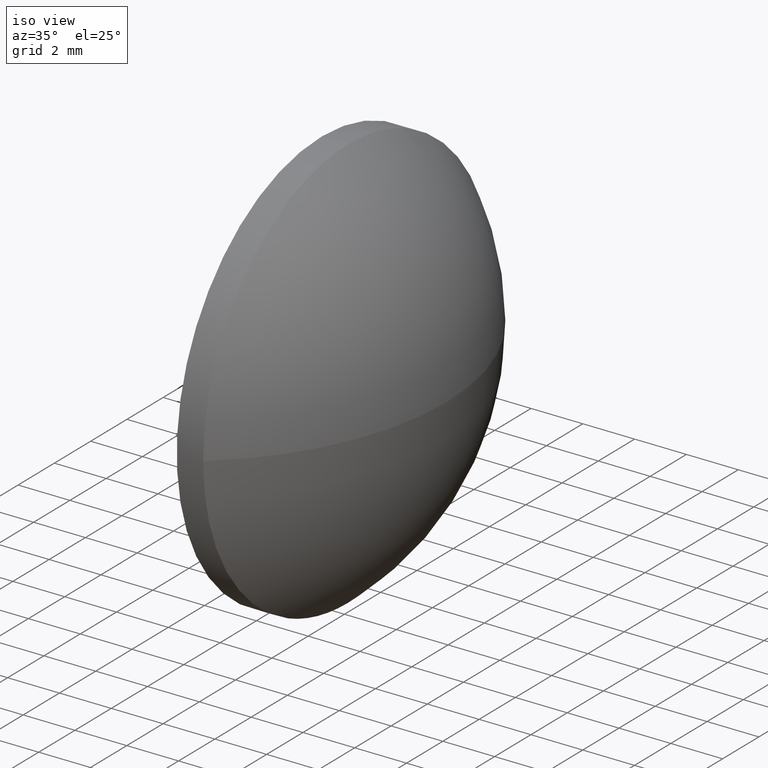
[diagram: clean part render]
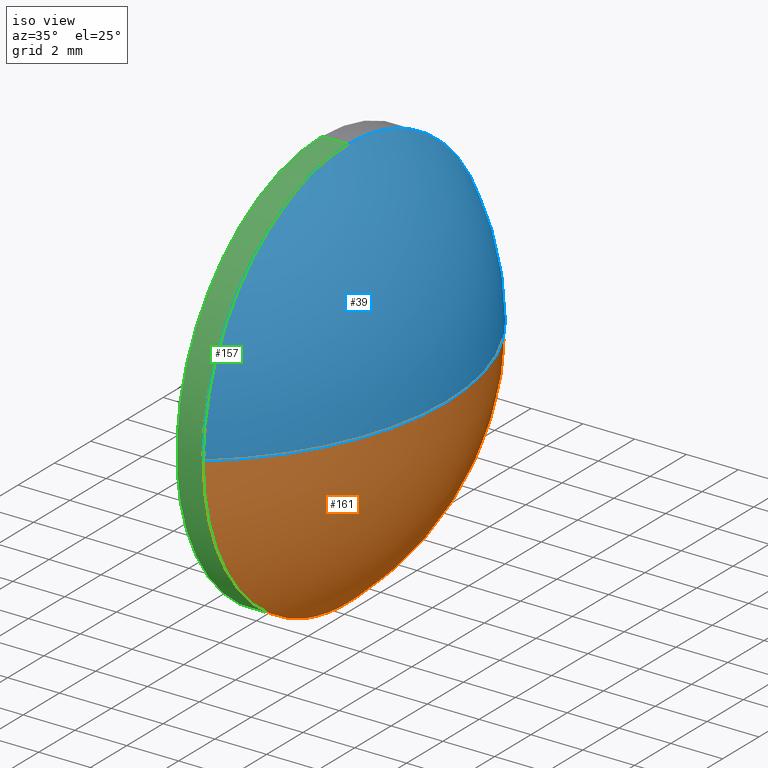
[diagram: same view with three faces highlighted in distinct colors, each labeled with its STEP entity id]
A machine part, iso view with three faces highlighted in distinct colors.
Their STEP definitions:

[orange] entity #161 — the highlighted spherical surface has radius 10.3556 mm.
#4 = CARTESIAN_POINT ( 'NONE',  ( 378.0321735062485100, 0.1662147536938291500, 9.797174393178831600E-016 ) ) ;
#8 = CARTESIAN_POINT ( 'NONE',  ( 378.0321735062485100, -7.833785246306179700, 0.0000000000000000000 ) ) ;
#10 = EDGE_CURVE ( 'NONE', #98, #104, #129, .T. ) ;
#14 = FACE_OUTER_BOUND ( 'NONE', #62, .T. ) ;
#18 = CARTESIAN_POINT ( 'NONE',  ( 378.0321735062485100, -15.83378524630618300, 0.0000000000000000000 ) ) ;
#21 = EDGE_CURVE ( 'NONE', #106, #104, #100, .T. ) ;
#24 = CARTESIAN_POINT ( 'NONE',  ( 371.4565650406399900, -7.833785246306176100, 0.0000000000000000000 ) ) ;
#31 = EDGE_CURVE ( 'NONE', #138, #106, #60, .T. ) ;
#33 = AXIS2_PLACEMENT_3D ( 'NONE', #51, #160, #80 ) ;
#35 = DIRECTION ( 'NONE',  ( 0.0000000000000000000, -1.000000000000000000, -1.224646799147353500E-016 ) ) ;
#42 = AXIS2_PLACEMENT_3D ( 'NONE', #8, #110, #121 ) ;
#45 = DIRECTION ( 'NONE',  ( 0.0000000000000000000, -1.224646799147353200E-016, 1.000000000000000000 ) ) ;
#51 = CARTESIAN_POINT ( 'NONE',  ( 371.4565650406399900, -7.833785246306176100, 0.0000000000000000000 ) ) ;
#52 = DIRECTION ( 'NONE',  ( 0.0000000000000000000, 0.0000000000000000000, 1.000000000000000000 ) ) ;
#54 = DIRECTION ( 'NONE',  ( -1.000000000000000000, -0.0000000000000000000, -0.0000000000000000000 ) ) ;
#60 = CIRCLE ( 'NONE', #139, 8.000000000000001800 ) ;
#62 = EDGE_LOOP ( 'NONE', ( #145, #140, #137, #182 ) ) ;
#70 = AXIS2_PLACEMENT_3D ( 'NONE', #89, #45, #35 ) ;
#75 = CARTESIAN_POINT ( 'NONE',  ( 378.0321735062485100, -7.833785246306177900, -8.000000000000001800 ) ) ;
#80 = DIRECTION ( 'NONE',  ( -1.000000000000000000, 0.0000000000000000000, 0.0000000000000000000 ) ) ;
#87 = CIRCLE ( 'NONE', #70, 10.35560846560850100 ) ;
#89 = CARTESIAN_POINT ( 'NONE',  ( 371.4565650406399900, -7.833785246306176100, 0.0000000000000000000 ) ) ;
#96 = SPHERICAL_SURFACE ( 'NONE', #134, 10.35560846560850100 ) ;
#98 = VERTEX_POINT ( 'NONE', #128 ) ;
#100 = CIRCLE ( 'NONE', #42, 8.000000000000001800 ) ;
#104 = VERTEX_POINT ( 'NONE', #18 ) ;
#106 = VERTEX_POINT ( 'NONE', #75 ) ;
#110 = DIRECTION ( 'NONE',  ( -1.000000000000000000, -0.0000000000000000000, -0.0000000000000000000 ) ) ;
#111 = DIRECTION ( 'NONE',  ( 0.0000000000000000000, -1.000000000000000000, 0.0000000000000000000 ) ) ;
#115 = EDGE_CURVE ( 'NONE', #98, #138, #87, .T. ) ;
#121 = DIRECTION ( 'NONE',  ( 0.0000000000000000000, 0.0000000000000000000, 1.000000000000000000 ) ) ;
#128 = CARTESIAN_POINT ( 'NONE',  ( 381.8121735062485400, -7.833785246306176100, 0.0000000000000000000 ) ) ;
#129 = CIRCLE ( 'NONE', #33, 10.35560846560851200 ) ;
#134 = AXIS2_PLACEMENT_3D ( 'NONE', #24, #52, #111 ) ;
#137 = ORIENTED_EDGE ( 'NONE', *, *, #21, .F. ) ;
#138 = VERTEX_POINT ( 'NONE', #4 ) ;
#139 = AXIS2_PLACEMENT_3D ( 'NONE', #148, #54, #149 ) ;
#140 = ORIENTED_EDGE ( 'NONE', *, *, #10, .T. ) ;
#145 = ORIENTED_EDGE ( 'NONE', *, *, #115, .F. ) ;
#148 = CARTESIAN_POINT ( 'NONE',  ( 378.0321735062485100, -7.833785246306179700, 0.0000000000000000000 ) ) ;
#149 = DIRECTION ( 'NONE',  ( 0.0000000000000000000, 0.0000000000000000000, 1.000000000000000000 ) ) ;
#160 = DIRECTION ( 'NONE',  ( 0.0000000000000000000, 0.0000000000000000000, -1.000000000000000000 ) ) ;
#161 = ADVANCED_FACE ( 'NONE', ( #14 ), #96, .T. ) ;
#182 = ORIENTED_EDGE ( 'NONE', *, *, #31, .F. ) ;

[blue] entity #39 — the highlighted spherical surface has radius 10.3556 mm.
#4 = CARTESIAN_POINT ( 'NONE',  ( 378.0321735062485100, 0.1662147536938291500, 9.797174393178831600E-016 ) ) ;
#9 = CARTESIAN_POINT ( 'NONE',  ( 378.0321735062485100, -7.833785246306179700, 0.0000000000000000000 ) ) ;
#10 = EDGE_CURVE ( 'NONE', #98, #104, #129, .T. ) ;
#17 = CIRCLE ( 'NONE', #29, 8.000000000000001800 ) ;
#18 = CARTESIAN_POINT ( 'NONE',  ( 378.0321735062485100, -15.83378524630618300, 0.0000000000000000000 ) ) ;
#25 = DIRECTION ( 'NONE',  ( 0.0000000000000000000, 0.0000000000000000000, 1.000000000000000000 ) ) ;
#27 = DIRECTION ( 'NONE',  ( 0.0000000000000000000, -1.000000000000000000, 0.0000000000000000000 ) ) ;
#29 = AXIS2_PLACEMENT_3D ( 'NONE', #9, #68, #122 ) ;
#33 = AXIS2_PLACEMENT_3D ( 'NONE', #51, #160, #80 ) ;
#35 = DIRECTION ( 'NONE',  ( 0.0000000000000000000, -1.000000000000000000, -1.224646799147353500E-016 ) ) ;
#39 = ADVANCED_FACE ( 'NONE', ( #58 ), #85, .T. ) ;
#41 = EDGE_CURVE ( 'NONE', #183, #138, #17, .T. ) ;
#45 = DIRECTION ( 'NONE',  ( 0.0000000000000000000, -1.224646799147353200E-016, 1.000000000000000000 ) ) ;
#51 = CARTESIAN_POINT ( 'NONE',  ( 371.4565650406399900, -7.833785246306176100, 0.0000000000000000000 ) ) ;
#58 = FACE_OUTER_BOUND ( 'NONE', #178, .T. ) ;
#64 = CARTESIAN_POINT ( 'NONE',  ( 378.0321735062485100, -7.833785246306179700, 8.000000000000001800 ) ) ;
#66 = CARTESIAN_POINT ( 'NONE',  ( 371.4565650406399900, -7.833785246306176100, 0.0000000000000000000 ) ) ;
#68 = DIRECTION ( 'NONE',  ( -1.000000000000000000, -0.0000000000000000000, -0.0000000000000000000 ) ) ;
#70 = AXIS2_PLACEMENT_3D ( 'NONE', #89, #45, #35 ) ;
#80 = DIRECTION ( 'NONE',  ( -1.000000000000000000, 0.0000000000000000000, 0.0000000000000000000 ) ) ;
#85 = SPHERICAL_SURFACE ( 'NONE', #184, 10.35560846560850100 ) ;
#87 = CIRCLE ( 'NONE', #70, 10.35560846560850100 ) ;
#89 = CARTESIAN_POINT ( 'NONE',  ( 371.4565650406399900, -7.833785246306176100, 0.0000000000000000000 ) ) ;
#90 = AXIS2_PLACEMENT_3D ( 'NONE', #181, #112, #93 ) ;
#91 = CIRCLE ( 'NONE', #90, 8.000000000000001800 ) ;
#93 = DIRECTION ( 'NONE',  ( 0.0000000000000000000, 0.0000000000000000000, 1.000000000000000000 ) ) ;
#98 = VERTEX_POINT ( 'NONE', #128 ) ;
#101 = ORIENTED_EDGE ( 'NONE', *, *, #10, .F. ) ;
#103 = ORIENTED_EDGE ( 'NONE', *, *, #115, .T. ) ;
#104 = VERTEX_POINT ( 'NONE', #18 ) ;
#112 = DIRECTION ( 'NONE',  ( -1.000000000000000000, -0.0000000000000000000, -0.0000000000000000000 ) ) ;
#113 = ORIENTED_EDGE ( 'NONE', *, *, #41, .F. ) ;
#115 = EDGE_CURVE ( 'NONE', #98, #138, #87, .T. ) ;
#122 = DIRECTION ( 'NONE',  ( 0.0000000000000000000, 0.0000000000000000000, 1.000000000000000000 ) ) ;
#128 = CARTESIAN_POINT ( 'NONE',  ( 381.8121735062485400, -7.833785246306176100, 0.0000000000000000000 ) ) ;
#129 = CIRCLE ( 'NONE', #33, 10.35560846560851200 ) ;
#138 = VERTEX_POINT ( 'NONE', #4 ) ;
#160 = DIRECTION ( 'NONE',  ( 0.0000000000000000000, 0.0000000000000000000, -1.000000000000000000 ) ) ;
#169 = ORIENTED_EDGE ( 'NONE', *, *, #180, .F. ) ;
#178 = EDGE_LOOP ( 'NONE', ( #101, #103, #113, #169 ) ) ;
#180 = EDGE_CURVE ( 'NONE', #104, #183, #91, .T. ) ;
#181 = CARTESIAN_POINT ( 'NONE',  ( 378.0321735062485100, -7.833785246306179700, 0.0000000000000000000 ) ) ;
#183 = VERTEX_POINT ( 'NONE', #64 ) ;
#184 = AXIS2_PLACEMENT_3D ( 'NONE', #66, #25, #27 ) ;

[green] entity #157 — the highlighted cylindrical surface (partial cylindrical patch) has radius 8 mm, axis along (-1, -0, -0).
#1 = AXIS2_PLACEMENT_3D ( 'NONE', #5, #47, #118 ) ;
#2 = EDGE_CURVE ( 'NONE', #106, #20, #107, .T. ) ;
#3 = DIRECTION ( 'NONE',  ( -1.000000000000000000, -0.0000000000000000000, -0.0000000000000000000 ) ) ;
#5 = CARTESIAN_POINT ( 'NONE',  ( 375.3642010332570200, -7.833785246306179700, 0.0000000000000000000 ) ) ;
#8 = CARTESIAN_POINT ( 'NONE',  ( 378.0321735062485100, -7.833785246306179700, 0.0000000000000000000 ) ) ;
#11 = AXIS2_PLACEMENT_3D ( 'NONE', #92, #162, #81 ) ;
#18 = CARTESIAN_POINT ( 'NONE',  ( 378.0321735062485100, -15.83378524630618300, 0.0000000000000000000 ) ) ;
#20 = VERTEX_POINT ( 'NONE', #119 ) ;
#21 = EDGE_CURVE ( 'NONE', #106, #104, #100, .T. ) ;
#23 = DIRECTION ( 'NONE',  ( -1.000000000000000000, -0.0000000000000000000, -0.0000000000000000000 ) ) ;
#28 = ORIENTED_EDGE ( 'NONE', *, *, #180, .T. ) ;
#30 = FACE_OUTER_BOUND ( 'NONE', #125, .T. ) ;
#32 = ORIENTED_EDGE ( 'NONE', *, *, #158, .F. ) ;
#37 = CARTESIAN_POINT ( 'NONE',  ( 377.0121735062485300, -7.833785246306179700, 8.000000000000001800 ) ) ;
#42 = AXIS2_PLACEMENT_3D ( 'NONE', #8, #110, #121 ) ;
#47 = DIRECTION ( 'NONE',  ( -1.000000000000000000, -0.0000000000000000000, -0.0000000000000000000 ) ) ;
#56 = VECTOR ( 'NONE', #3, 1000.000000000000000 ) ;
#64 = CARTESIAN_POINT ( 'NONE',  ( 378.0321735062485100, -7.833785246306179700, 8.000000000000001800 ) ) ;
#69 = VECTOR ( 'NONE', #23, 1000.000000000000000 ) ;
#74 = ORIENTED_EDGE ( 'NONE', *, *, #2, .F. ) ;
#75 = CARTESIAN_POINT ( 'NONE',  ( 378.0321735062485100, -7.833785246306177900, -8.000000000000001800 ) ) ;
#79 = CARTESIAN_POINT ( 'NONE',  ( 375.3642010332570200, -7.833785246306177900, -8.000000000000001800 ) ) ;
#81 = DIRECTION ( 'NONE',  ( 0.0000000000000000000, 0.0000000000000000000, 1.000000000000000000 ) ) ;
#83 = EDGE_CURVE ( 'NONE', #183, #142, #153, .T. ) ;
#90 = AXIS2_PLACEMENT_3D ( 'NONE', #181, #112, #93 ) ;
#91 = CIRCLE ( 'NONE', #90, 8.000000000000001800 ) ;
#92 = CARTESIAN_POINT ( 'NONE',  ( 377.0121735062485300, -7.833785246306179700, 0.0000000000000000000 ) ) ;
#93 = DIRECTION ( 'NONE',  ( 0.0000000000000000000, 0.0000000000000000000, 1.000000000000000000 ) ) ;
#100 = CIRCLE ( 'NONE', #42, 8.000000000000001800 ) ;
#104 = VERTEX_POINT ( 'NONE', #18 ) ;
#106 = VERTEX_POINT ( 'NONE', #75 ) ;
#107 = LINE ( 'NONE', #79, #69 ) ;
#110 = DIRECTION ( 'NONE',  ( -1.000000000000000000, -0.0000000000000000000, -0.0000000000000000000 ) ) ;
#112 = DIRECTION ( 'NONE',  ( -1.000000000000000000, -0.0000000000000000000, -0.0000000000000000000 ) ) ;
#118 = DIRECTION ( 'NONE',  ( 0.0000000000000000000, 0.0000000000000000000, 1.000000000000000000 ) ) ;
#119 = CARTESIAN_POINT ( 'NONE',  ( 377.0121735062485300, -7.833785246306177900, -8.000000000000001800 ) ) ;
#121 = DIRECTION ( 'NONE',  ( 0.0000000000000000000, 0.0000000000000000000, 1.000000000000000000 ) ) ;
#125 = EDGE_LOOP ( 'NONE', ( #74, #173, #28, #185, #32 ) ) ;
#142 = VERTEX_POINT ( 'NONE', #37 ) ;
#153 = LINE ( 'NONE', #176, #56 ) ;
#157 = ADVANCED_FACE ( 'NONE', ( #30 ), #170, .T. ) ;
#158 = EDGE_CURVE ( 'NONE', #20, #142, #166, .T. ) ;
#162 = DIRECTION ( 'NONE',  ( -1.000000000000000000, -0.0000000000000000000, -0.0000000000000000000 ) ) ;
#166 = CIRCLE ( 'NONE', #11, 8.000000000000001800 ) ;
#170 = CYLINDRICAL_SURFACE ( 'NONE', #1, 8.000000000000001800 ) ;
#173 = ORIENTED_EDGE ( 'NONE', *, *, #21, .T. ) ;
#176 = CARTESIAN_POINT ( 'NONE',  ( 375.3642010332570200, -7.833785246306179700, 8.000000000000001800 ) ) ;
#180 = EDGE_CURVE ( 'NONE', #104, #183, #91, .T. ) ;
#181 = CARTESIAN_POINT ( 'NONE',  ( 378.0321735062485100, -7.833785246306179700, 0.0000000000000000000 ) ) ;
#183 = VERTEX_POINT ( 'NONE', #64 ) ;
#185 = ORIENTED_EDGE ( 'NONE', *, *, #83, .T. ) ;